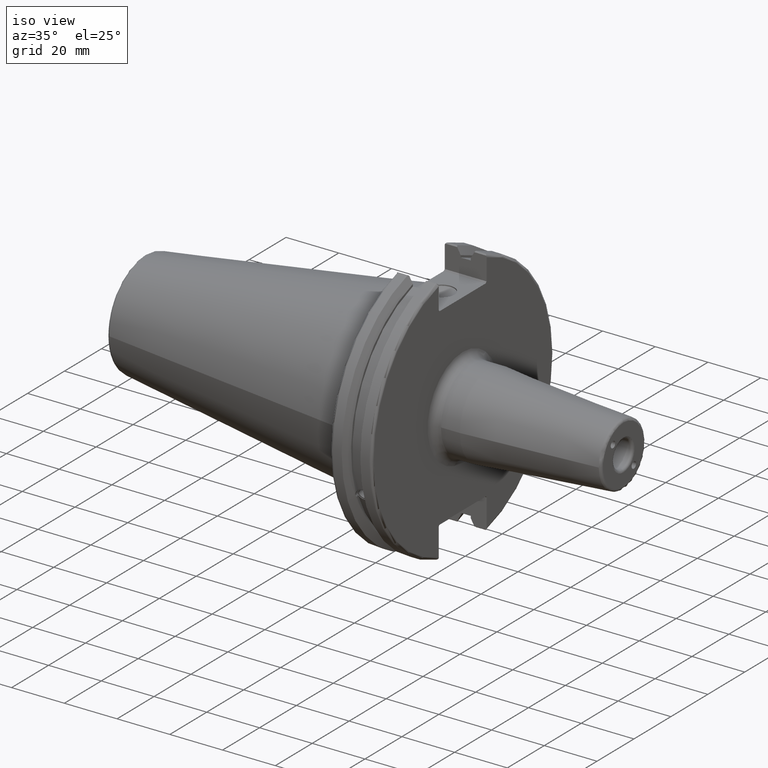
[diagram: clean part render]
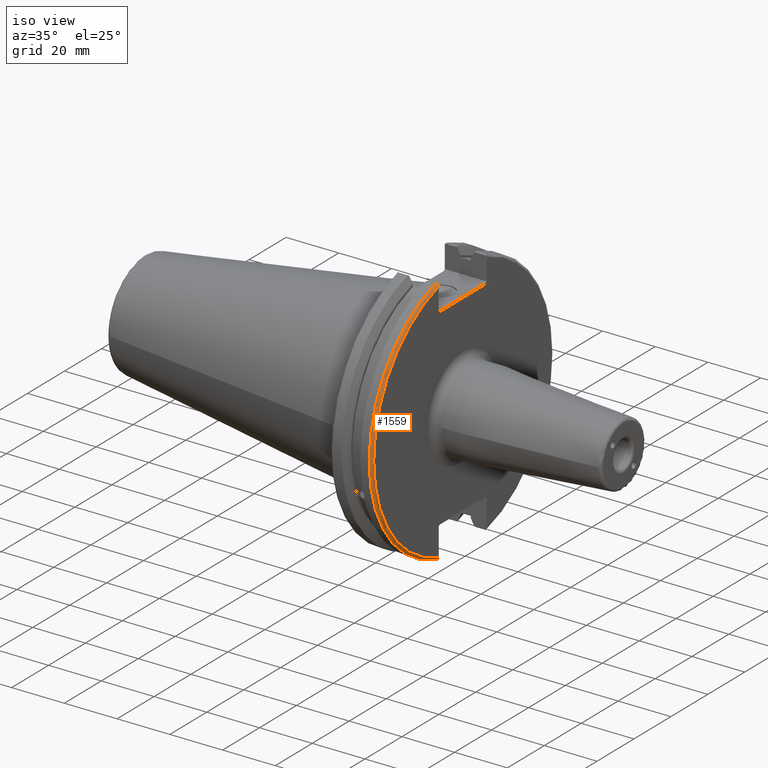
[diagram: same view with one face highlighted and labeled with its STEP entity id]
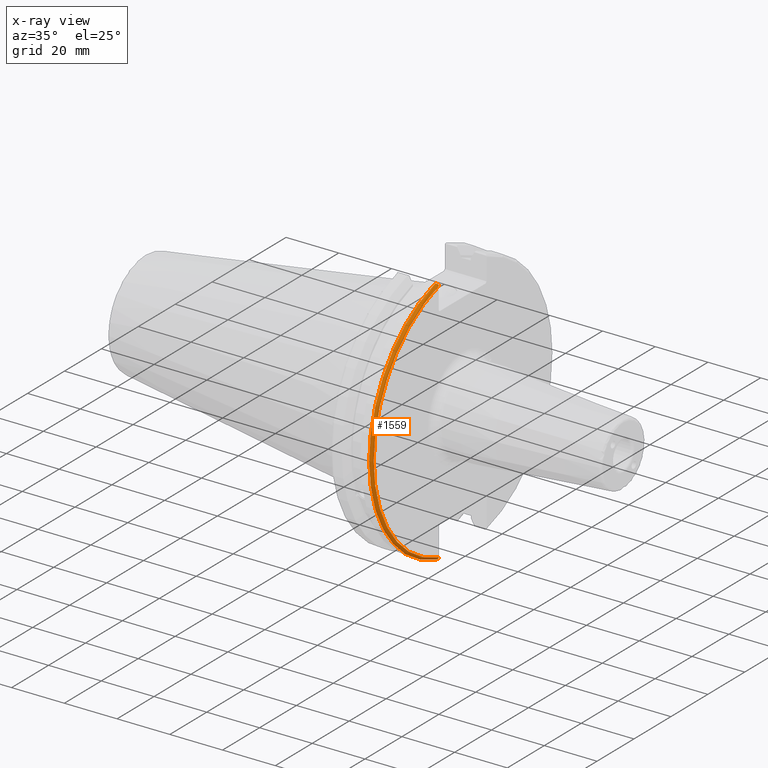
[diagram: x-ray of the same camera — body ghosted, the highlighted face saturated]
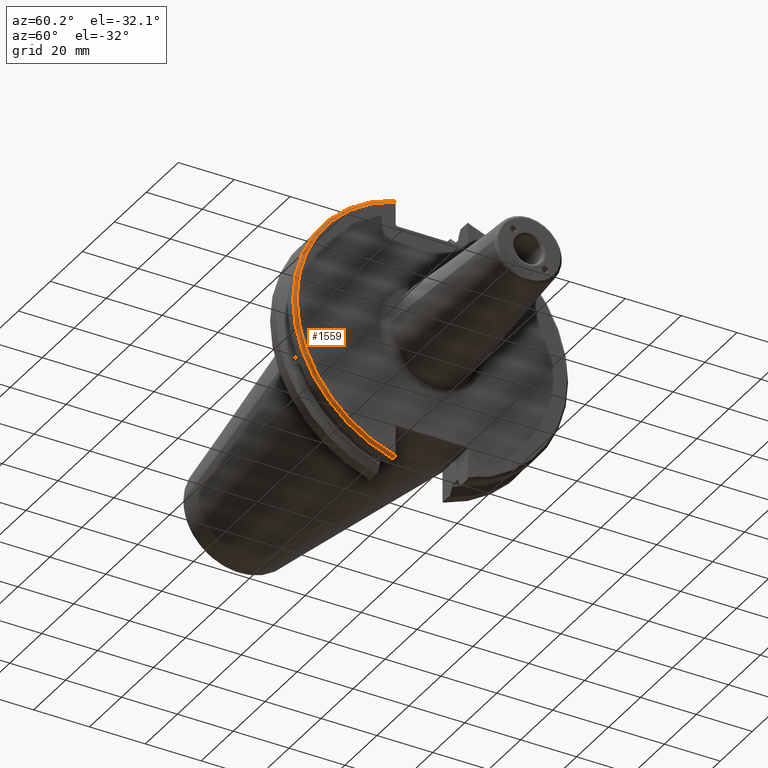
[diagram: same view with one face highlighted and labeled with its STEP entity id]
A machine part, iso view. The second image highlights one B-rep face of the part: STEP entity #1559.
The next image is the same camera in x-ray: the body ghosted, the highlighted face saturated — about 0% of this face is hidden behind the body in this view.
A second angle (auxiliary view) of the same face is appended — the face is thin or edge-on in the first view.
In plain terms, the highlighted toroidal blend (fillet) surface has major radius 48.2125 mm and minor (blend) radius 1 mm.
Its self-contained STEP definition (entity closure, byte-faithful):
#58=B_SPLINE_CURVE_WITH_KNOTS('',3,(#2969,#2970,#2971,#2972,#2973,#2974),
 .UNSPECIFIED.,.F.,.F.,(4,2,4),(0.097707143645253,0.112358403262293,0.150882178076498),
 .UNSPECIFIED.);
#59=B_SPLINE_CURVE_WITH_KNOTS('',3,(#2976,#2977,#2978,#2979,#2980,#2981),
 .UNSPECIFIED.,.F.,.F.,(4,2,4),(0.452859694247731,0.491383469061936,0.506034728678978),
 .UNSPECIFIED.);
#60=B_SPLINE_CURVE_WITH_KNOTS('',3,(#2983,#2984,#2985,#2986,#2987,#2988,
#2989,#2990),.UNSPECIFIED.,.F.,.F.,(4,2,2,4),(-0.104075769062722,-0.0730268503455477,
-0.0343639873656263,0.),.UNSPECIFIED.);
#61=B_SPLINE_CURVE_WITH_KNOTS('',3,(#2993,#2994,#2995,#2996,#2997,#2998,
#2999,#3000),.UNSPECIFIED.,.F.,.F.,(4,2,2,4),(0.,0.0364336453281818,0.0778720357014993,
0.104197480645881),.UNSPECIFIED.);
#133=TOROIDAL_SURFACE('',#1733,48.2125,1.);
#220=FACE_OUTER_BOUND('',#329,.T.);
#329=EDGE_LOOP('',(#1298,#1299,#1300,#1301,#1302,#1303));
#586=CIRCLE('',#1662,48.2125);
#621=CIRCLE('',#1734,49.2125);
#670=VERTEX_POINT('',#2318);
#671=VERTEX_POINT('',#2320);
#767=VERTEX_POINT('',#2968);
#768=VERTEX_POINT('',#2975);
#769=VERTEX_POINT('',#2982);
#770=VERTEX_POINT('',#2991);
#836=EDGE_CURVE('',#671,#670,#586,.T.);
#962=EDGE_CURVE('',#767,#671,#58,.T.);
#963=EDGE_CURVE('',#670,#768,#59,.T.);
#964=EDGE_CURVE('',#768,#769,#60,.T.);
#965=EDGE_CURVE('',#769,#770,#621,.T.);
#966=EDGE_CURVE('',#770,#767,#61,.T.);
#1298=ORIENTED_EDGE('',*,*,#962,.T.);
#1299=ORIENTED_EDGE('',*,*,#836,.T.);
#1300=ORIENTED_EDGE('',*,*,#963,.T.);
#1301=ORIENTED_EDGE('',*,*,#964,.T.);
#1302=ORIENTED_EDGE('',*,*,#965,.T.);
#1303=ORIENTED_EDGE('',*,*,#966,.T.);
#1559=ADVANCED_FACE('',(#220),#133,.T.);
#1662=AXIS2_PLACEMENT_3D('',#2321,#1890,#1891);
#1733=AXIS2_PLACEMENT_3D('',#2967,#2085,#2086);
#1734=AXIS2_PLACEMENT_3D('',#2992,#2087,#2088);
#1890=DIRECTION('center_axis',(-1.,0.,0.));
#1891=DIRECTION('ref_axis',(0.,-1.,1.60812264967664E-16));
#2085=DIRECTION('center_axis',(1.,0.,0.));
#2086=DIRECTION('ref_axis',(0.,0.,-1.));
#2087=DIRECTION('center_axis',(1.,0.,0.));
#2088=DIRECTION('ref_axis',(0.,-1.,1.60812264967664E-16));
#2318=CARTESIAN_POINT('',(19.05,-12.95,46.4407434937254));
#2320=CARTESIAN_POINT('',(19.05,-12.95,-46.4407434937254));
#2321=CARTESIAN_POINT('Origin',(19.05,0.,0.));
#2967=CARTESIAN_POINT('Origin',(18.05,0.,0.));
#2968=CARTESIAN_POINT('',(18.9055020570566,-12.95,-46.9780755322917));
#2969=CARTESIAN_POINT('Ctrl Pts',(18.9055020570566,-12.95,-46.9780755322917));
#2970=CARTESIAN_POINT('Ctrl Pts',(18.9322353702005,-12.95,-46.9322596399785));
#2971=CARTESIAN_POINT('Ctrl Pts',(18.9549831813775,-12.95,-46.8849952622217));
#2972=CARTESIAN_POINT('Ctrl Pts',(19.0209992543299,-12.95,-46.7204975987179));
#2973=CARTESIAN_POINT('Ctrl Pts',(19.05,-12.95,-46.5691560764394));
#2974=CARTESIAN_POINT('Ctrl Pts',(19.05,-12.95,-46.4407434937254));
#2975=CARTESIAN_POINT('',(18.9055020570566,-12.95,46.9780755322918));
#2976=CARTESIAN_POINT('Ctrl Pts',(19.05,-12.95,46.4407434937254));
#2977=CARTESIAN_POINT('Ctrl Pts',(19.05,-12.95,46.5691560764394));
#2978=CARTESIAN_POINT('Ctrl Pts',(19.0209992543299,-12.95,46.7204975987179));
#2979=CARTESIAN_POINT('Ctrl Pts',(18.9549831813775,-12.95,46.8849952622217));
#2980=CARTESIAN_POINT('Ctrl Pts',(18.9322353702005,-12.95,46.9322596399785));
#2981=CARTESIAN_POINT('Ctrl Pts',(18.9055020570566,-12.95,46.9780755322918));
#2982=CARTESIAN_POINT('',(18.05,-13.4317035994433,47.3440544806494));
#2983=CARTESIAN_POINT('Ctrl Pts',(18.9055020570566,-12.95,46.9780755322918));
#2984=CARTESIAN_POINT('Ctrl Pts',(18.8571496772125,-13.0300321736484,47.0388807469102));
#2985=CARTESIAN_POINT('Ctrl Pts',(18.792640282015,-13.1083611826073,47.0983919657547));
#2986=CARTESIAN_POINT('Ctrl Pts',(18.6399248789208,-13.2478194810695,47.2043467509586));
#2987=CARTESIAN_POINT('Ctrl Pts',(18.5186188350904,-13.3242014686233,47.2623787015413));
#2988=CARTESIAN_POINT('Ctrl Pts',(18.2983889675417,-13.4067722493645,47.3251126473446));
#2989=CARTESIAN_POINT('Ctrl Pts',(18.1645466245521,-13.4317035994433,47.3440544806494));
#2990=CARTESIAN_POINT('Ctrl Pts',(18.05,-13.4317035994433,47.3440544806494));
#2991=CARTESIAN_POINT('',(18.05,-13.4317035994433,-47.3440544806494));
#2992=CARTESIAN_POINT('Origin',(18.05,0.,0.));
#2993=CARTESIAN_POINT('Ctrl Pts',(18.05,-13.4317035994433,-47.3440544806494));
#2994=CARTESIAN_POINT('Ctrl Pts',(18.1714454844273,-13.4317035994433,-47.3440544806494));
#2995=CARTESIAN_POINT('Ctrl Pts',(18.3128758164404,-13.4037095171132,-47.3227857070233));
#2996=CARTESIAN_POINT('Ctrl Pts',(18.54495745946,-13.3111366376071,-47.2524525703658));
#2997=CARTESIAN_POINT('Ctrl Pts',(18.6710431007969,-13.2254637570201,-47.1873617743322));
#2998=CARTESIAN_POINT('Ctrl Pts',(18.811782280389,-13.0847856162862,-47.0804802022157));
#2999=CARTESIAN_POINT('Ctrl Pts',(18.8641312352177,-13.0184763978125,-47.0301011349397));
#3000=CARTESIAN_POINT('Ctrl Pts',(18.9055020570566,-12.95,-46.9780755322917));